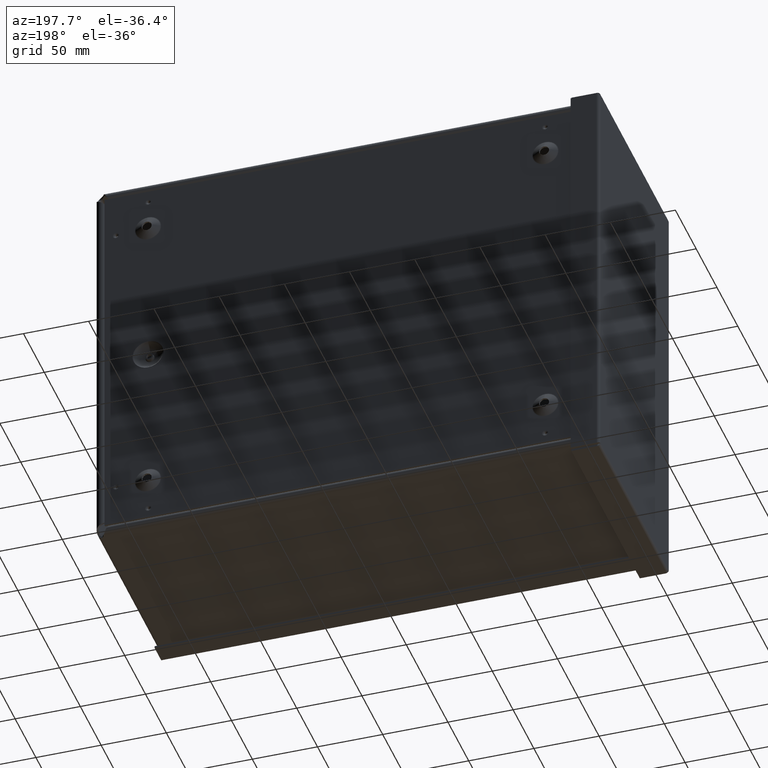
[diagram: clean part render]
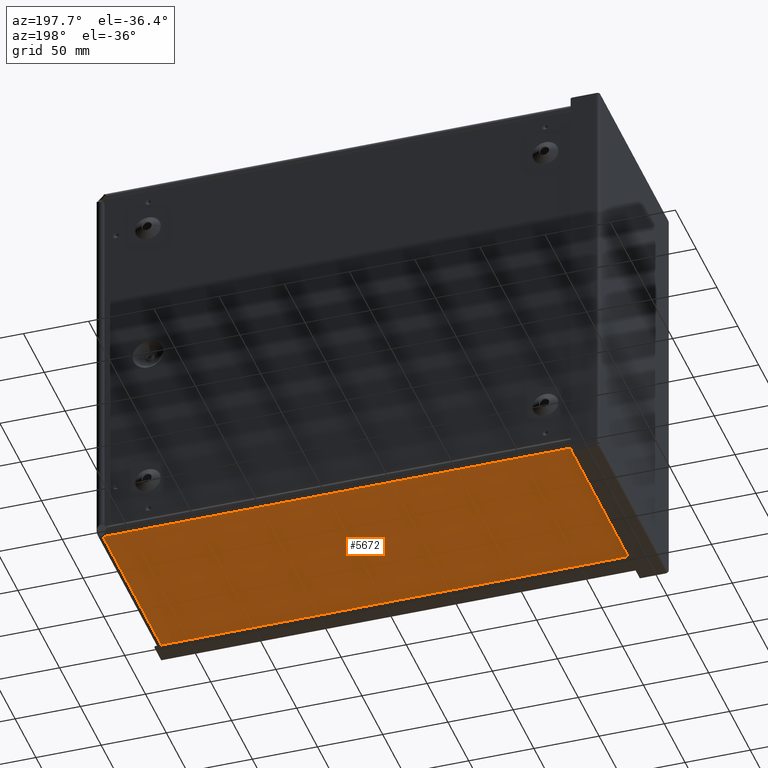
[diagram: same view with one face highlighted and labeled with its STEP entity id]
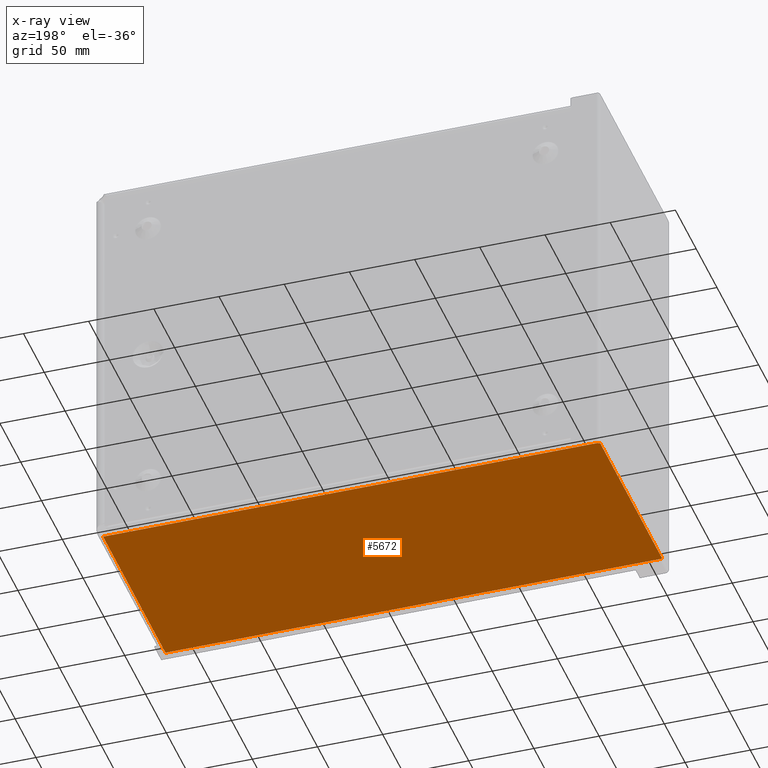
[diagram: x-ray of the same camera — body ghosted, the highlighted face saturated]
A machine part, auxiliary view. The second image highlights one B-rep face of the part: STEP entity #5672.
The next image is the same camera in x-ray: the body ghosted, the highlighted face saturated — about 0% of this face is hidden behind the body in this view.
In plain terms, the highlighted planar face has unit normal (-0, 0, 1).
Its self-contained STEP definition (entity closure, byte-faithful):
#324=PLANE($,#6016);
#412=CIRCLE($,#5887,0.098);
#781=FACE_OUTER_BOUND($,#1124,.T.);
#1124=EDGE_LOOP($,(#4425,#4426,#4427,#4428,#4429,#4430,#4431));
#1584=LINE($,#8077,#2041);
#1717=LINE($,#9316,#2174);
#1754=LINE($,#9406,#2211);
#1769=LINE($,#9530,#2226);
#1811=LINE($,#9809,#2268);
#1817=LINE($,#9867,#2274);
#2041=VECTOR($,#6388,0.0149929116948673);
#2174=VECTOR($,#6601,5.8775);
#2211=VECTOR($,#6714,14.9214200826617);
#2226=VECTOR($,#6747,14.8943058261757);
#2268=VECTOR($,#6849,0.106194173824292);
#2274=VECTOR($,#6873,5.89489136137114);
#2503=VERTEX_POINT($,#8044);
#2504=VERTEX_POINT($,#8060);
#2506=VERTEX_POINT($,#8063);
#2511=VERTEX_POINT($,#8075);
#2639=VERTEX_POINT($,#9315);
#2667=VERTEX_POINT($,#9518);
#2668=VERTEX_POINT($,#9529);
#2987=EDGE_CURVE($,#2506,#2504,#412,.T.);
#2994=EDGE_CURVE($,#2503,#2511,#1584,.T.);
#3187=EDGE_CURVE($,#2506,#2639,#1717,.T.);
#3231=EDGE_CURVE($,#2503,#2504,#1754,.T.);
#3253=EDGE_CURVE($,#2668,#2667,#1769,.T.);
#3313=EDGE_CURVE($,#2667,#2639,#1811,.T.);
#3327=EDGE_CURVE($,#2511,#2668,#1817,.T.);
#4425=ORIENTED_EDGE($,*,*,#2994,.T.);
#4426=ORIENTED_EDGE($,*,*,#3327,.T.);
#4427=ORIENTED_EDGE($,*,*,#3253,.T.);
#4428=ORIENTED_EDGE($,*,*,#3313,.T.);
#4429=ORIENTED_EDGE($,*,*,#3187,.F.);
#4430=ORIENTED_EDGE($,*,*,#2987,.T.);
#4431=ORIENTED_EDGE($,*,*,#3231,.F.);
#5672=ADVANCED_FACE($,(#781),#324,.F.);
#5887=AXIS2_PLACEMENT_3D($,#8064,#6377,#6378);
#6016=AXIS2_PLACEMENT_3D($,#9868,#6874,#6875);
#6377=DIRECTION('center_axis',(-7.59230323794649E-014,4.29468099791957E-016,
1.));
#6378=DIRECTION('ref_axis',(0.726688416894841,-0.686967207915247,5.64496916550797E-014));
#6388=DIRECTION($,(0.632849133218075,-0.774275128481556,4.83803517007774E-014));
#6601=DIRECTION($,(4.64806949984468E-016,-1.,3.80985221409694E-016));
#6714=DIRECTION($,(-1.,-1.16956621022522E-016,-7.58876666046297E-014));
#6747=DIRECTION($,(-1.,-2.56822576099629E-016,-7.59230323794649E-014));
#6849=DIRECTION($,(-1.,-2.56822576099629E-016,-7.59230323794649E-014));
#6873=DIRECTION($,(1.16956621022489E-016,-1.,4.29468099791966E-016));
#6874=DIRECTION('center_axis',(-7.59230323794649E-014,4.29468099791957E-016,
1.));
#6875=DIRECTION('ref_axis',(1.,1.00651136853004E-018,7.21911419532262E-014));
#8044=CARTESIAN_POINT('',(8.89726174883053,3.01575,-39.0888587502541));
#8060=CARTESIAN_POINT('',(-6.02415833383122,3.01575,-39.0888587502553));
#8063=CARTESIAN_POINT('',(-6.09374999999897,2.98675,-39.0888587502553));
#8064=CARTESIAN_POINT('Origin',(-6.09374999999894,3.08475,-39.0888587502553));
#8075=CARTESIAN_POINT('',(8.90675000000104,3.00414136137114,-39.0888587502541));
#8077=CARTESIAN_POINT($,(8.17392962090859,3.90072881546218,-39.0888587502542));
#9315=CARTESIAN_POINT('',(-6.09374999999896,-2.89075,-39.0888587502553));
#9316=CARTESIAN_POINT($,(-6.09374999999896,3.01575,-39.0888587502553));
#9406=CARTESIAN_POINT($,(8.90675000000104,3.01575,-39.0888587502541));
#9518=CARTESIAN_POINT('',(-5.98755582617467,-2.89075,-39.0888587502553));
#9529=CARTESIAN_POINT('',(8.90675000000104,-2.89075,-39.0888587502541));
#9530=CARTESIAN_POINT($,(5.21065489585564,-2.89075,-39.0888587502544));
#9809=CARTESIAN_POINT($,(5.21065489585564,-2.89075,-39.0888587502544));
#9867=CARTESIAN_POINT($,(8.90675000000104,-1.27042656626118E-015,-39.0888587502541));
#9868=CARTESIAN_POINT('Origin',(1.51455979171024,-2.13499215497864E-015,
-39.0888587502547));